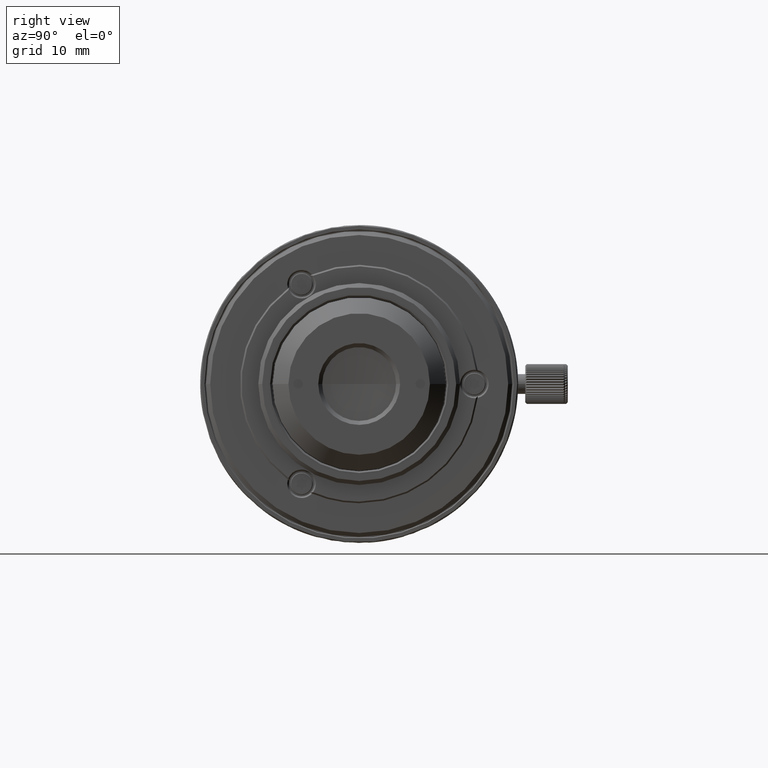
[diagram: clean part render]
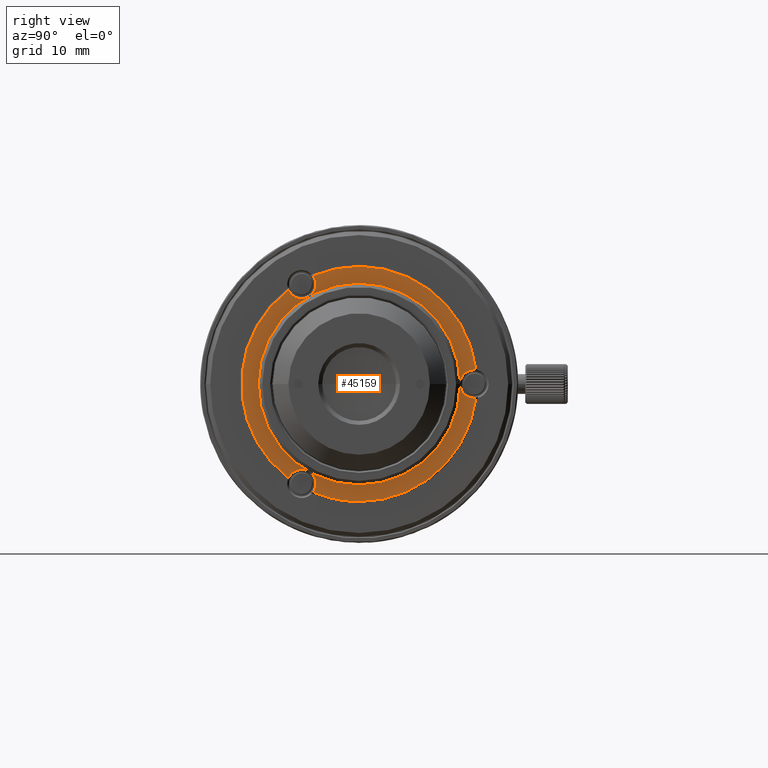
[diagram: same view with one face highlighted and labeled with its STEP entity id]
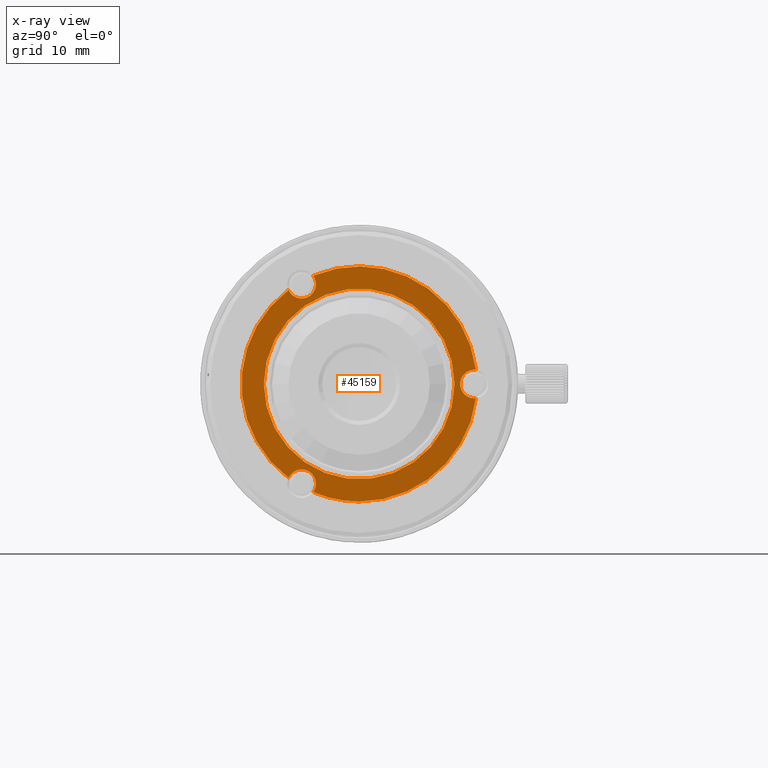
[diagram: x-ray of the same camera — body ghosted, the highlighted face saturated]
A machine part, right view. The second image highlights one B-rep face of the part: STEP entity #45159.
The next image is the same camera in x-ray: the body ghosted, the highlighted face saturated — about 0% of this face is hidden behind the body in this view.
In plain terms, the highlighted planar face has unit normal (-1, 0, 0).
Its self-contained STEP definition (entity closure, byte-faithful):
#296 = DIRECTION ( 'NONE',  ( 0.000000000000000000, -1.000000000000000000, 0.000000000000000000 ) ) ;
#346 = EDGE_CURVE ( 'NONE', #18546, #37930, #12892, .T. ) ;
#3335 = CIRCLE ( 'NONE', #28316, 14.80000062864999855 ) ;
#3362 = VERTEX_POINT ( 'NONE', #9645 ) ;
#4118 = AXIS2_PLACEMENT_3D ( 'NONE', #57099, #64925, #29232 ) ;
#6234 = AXIS2_PLACEMENT_3D ( 'NONE', #43205, #77249, #53200 ) ;
#6852 = ORIENTED_EDGE ( 'NONE', *, *, #75041, .F. ) ;
#7457 = VERTEX_POINT ( 'NONE', #52961 ) ;
#8005 = CIRCLE ( 'NONE', #6234, 1.800000000000000711 ) ;
#8061 = VERTEX_POINT ( 'NONE', #75900 ) ;
#8523 = CIRCLE ( 'NONE', #24576, 14.80022837059000018 ) ;
#9192 = DIRECTION ( 'NONE',  ( 0.000000000000000000, 0.000000000000000000, 1.000000000000000000 ) ) ;
#9409 = VERTEX_POINT ( 'NONE', #45067 ) ;
#9645 = CARTESIAN_POINT ( 'NONE',  ( -8.895699425235999769, -11.82820897464000076, 0.000000000000000000 ) ) ;
#10195 = EDGE_LOOP ( 'NONE', ( #54866, #108644, #49036, #38342, #85592, #50661, #56383, #26989, #23645, #6852 ) ) ;
#11852 = EDGE_CURVE ( 'NONE', #72165, #24278, #57294, .T. ) ;
#12892 = CIRCLE ( 'NONE', #55642, 1.800000000000000044 ) ;
#14168 = EDGE_CURVE ( 'NONE', #49492, #9409, #62873, .T. ) ;
#14210 = CARTESIAN_POINT ( 'NONE',  ( -12.00000000000000000, 0.000000000000000000, 0.000000000000000000 ) ) ;
#18492 = CARTESIAN_POINT ( 'NONE',  ( -0.0002794546518250000063, 0.0002815071706398999561, -3.103295398432000474E-12 ) ) ;
#18546 = VERTEX_POINT ( 'NONE', #81772 ) ;
#20461 = CIRCLE ( 'NONE', #82819, 1.800000000000000044 ) ;
#21104 = CIRCLE ( 'NONE', #83477, 12.00000000000000000 ) ;
#21597 = DIRECTION ( 'NONE',  ( 0.000000000000000000, 0.000000000000000000, -1.000000000000000000 ) ) ;
#22544 = EDGE_CURVE ( 'NONE', #3362, #8061, #3335, .T. ) ;
#22611 = AXIS2_PLACEMENT_3D ( 'NONE', #18492, #94912, #31482 ) ;
#23439 = DIRECTION ( 'NONE',  ( -0.8079354224512239613, 0.5892710353891170705, 0.000000000000000000 ) ) ;
#23645 = ORIENTED_EDGE ( 'NONE', *, *, #82122, .F. ) ;
#24278 = VERTEX_POINT ( 'NONE', #14210 ) ;
#24576 = AXIS2_PLACEMENT_3D ( 'NONE', #31619, #56180, #72908 ) ;
#24748 = PLANE ( 'NONE',  #50802 ) ;
#26989 = ORIENTED_EDGE ( 'NONE', *, *, #86418, .F. ) ;
#27758 = CIRCLE ( 'NONE', #42045, 1.800000000000000044 ) ;
#28316 = AXIS2_PLACEMENT_3D ( 'NONE', #108809, #56905, #30141 ) ;
#29232 = DIRECTION ( 'NONE',  ( 0.000000000000000000, -1.000000000000000000, 0.000000000000000000 ) ) ;
#30141 = DIRECTION ( 'NONE',  ( -0.6010607794692370831, -0.7992033154234491343, 0.000000000000000000 ) ) ;
#31482 = DIRECTION ( 'NONE',  ( 0.000000000000000000, 1.000000000000000000, 0.000000000000000000 ) ) ;
#31619 = CARTESIAN_POINT ( 'NONE',  ( -0.0001934229603178000043, 0.0001911736150891000087, -2.396305376351000077E-12 ) ) ;
#32130 = CARTESIAN_POINT ( 'NONE',  ( 0.000000000000000000, 0.000000000000000000, 0.000000000000000000 ) ) ;
#37930 = VERTEX_POINT ( 'NONE', #59201 ) ;
#38308 = CARTESIAN_POINT ( 'NONE',  ( 0.000000000000000000, 0.000000000000000000, 0.000000000000000000 ) ) ;
#38342 = ORIENTED_EDGE ( 'NONE', *, *, #14168, .F. ) ;
#39017 = DIRECTION ( 'NONE',  ( 0.000000000000000000, 0.000000000000000000, 1.000000000000000000 ) ) ;
#39156 = VERTEX_POINT ( 'NONE', #94777 ) ;
#39592 = DIRECTION ( 'NONE',  ( -1.000000000000000000, 0.000000000000000000, 0.000000000000000000 ) ) ;
#41512 = FACE_OUTER_BOUND ( 'NONE', #10195, .T. ) ;
#41772 = DIRECTION ( 'NONE',  ( 0.000000000000000000, 0.000000000000000000, 1.000000000000000000 ) ) ;
#41880 = CIRCLE ( 'NONE', #100645, 1.800000000000000711 ) ;
#42045 = AXIS2_PLACEMENT_3D ( 'NONE', #92550, #41772, #109858 ) ;
#43205 = CARTESIAN_POINT ( 'NONE',  ( -7.250000000000000000, 12.55736835487000036, 0.000000000000000000 ) ) ;
#43710 = CIRCLE ( 'NONE', #63276, 1.800000000000000266 ) ;
#44482 = VERTEX_POINT ( 'NONE', #61524 ) ;
#44799 = EDGE_CURVE ( 'NONE', #37930, #39156, #20461, .T. ) ;
#45067 = CARTESIAN_POINT ( 'NONE',  ( -0.0001934229603178000043, -14.80003719697296916, -2.396305376351000077E-12 ) ) ;
#45159 = ADVANCED_FACE ( 'NONE', ( #41512, #55622 ), #24748, .F. ) ;
#49036 = ORIENTED_EDGE ( 'NONE', *, *, #55184, .F. ) ;
#49492 = VERTEX_POINT ( 'NONE', #57515 ) ;
#50212 = CARTESIAN_POINT ( 'NONE',  ( -7.250000000000000000, -12.55736835487000036, 0.000000000000000000 ) ) ;
#50658 = EDGE_CURVE ( 'NONE', #39156, #49492, #27758, .T. ) ;
#50661 = ORIENTED_EDGE ( 'NONE', *, *, #44799, .F. ) ;
#50802 = AXIS2_PLACEMENT_3D ( 'NONE', #38308, #21597, #109031 ) ;
#52961 = CARTESIAN_POINT ( 'NONE',  ( -5.795757324452999626, -13.61811264460000004, -2.396305376351000077E-12 ) ) ;
#53200 = DIRECTION ( 'NONE',  ( 0.9142775077956818430, 0.4050884332326918358, 0.000000000000000000 ) ) ;
#54866 = ORIENTED_EDGE ( 'NONE', *, *, #22544, .F. ) ;
#55184 = EDGE_CURVE ( 'NONE', #9409, #7457, #8523, .T. ) ;
#55622 = FACE_BOUND ( 'NONE', #97752, .T. ) ;
#55642 = AXIS2_PLACEMENT_3D ( 'NONE', #61053, #9192, #296 ) ;
#56180 = DIRECTION ( 'NONE',  ( 0.000000000000000000, 0.000000000000000000, -1.000000000000000000 ) ) ;
#56383 = ORIENTED_EDGE ( 'NONE', *, *, #346, .F. ) ;
#56905 = DIRECTION ( 'NONE',  ( 0.000000000000000000, 0.000000000000000000, -1.000000000000000000 ) ) ;
#57099 = CARTESIAN_POINT ( 'NONE',  ( -0.0001934229603178000043, 0.0001911736150891000087, -2.396305376351000077E-12 ) ) ;
#57294 = CIRCLE ( 'NONE', #71541, 12.00000000000000000 ) ;
#57515 = CARTESIAN_POINT ( 'NONE',  ( 14.69139283926999973, -1.789795737248999874, 0.000000000000000000 ) ) ;
#59201 = CARTESIAN_POINT ( 'NONE',  ( 14.50000000000000000, 1.799999999999970290, 1.355252715606880543E-17 ) ) ;
#61053 = CARTESIAN_POINT ( 'NONE',  ( 14.50000000000000000, 0.000000000000000000, 0.000000000000000000 ) ) ;
#61524 = CARTESIAN_POINT ( 'NONE',  ( -7.250000000000000000, 10.75736835487002985, 1.355252715606880543E-17 ) ) ;
#62474 = CARTESIAN_POINT ( 'NONE',  ( 14.50000000000000000, 0.000000000000000000, 0.000000000000000000 ) ) ;
#62873 = CIRCLE ( 'NONE', #4118, 14.80022837059000018 ) ;
#63276 = AXIS2_PLACEMENT_3D ( 'NONE', #50212, #84272, #23439 ) ;
#63592 = CARTESIAN_POINT ( 'NONE',  ( 0.000000000000000000, 0.000000000000000000, 0.000000000000000000 ) ) ;
#64925 = DIRECTION ( 'NONE',  ( 0.000000000000000000, 0.000000000000000000, -1.000000000000000000 ) ) ;
#69139 = ORIENTED_EDGE ( 'NONE', *, *, #78901, .F. ) ;
#69379 = ORIENTED_EDGE ( 'NONE', *, *, #11852, .F. ) ;
#71541 = AXIS2_PLACEMENT_3D ( 'NONE', #32130, #75085, #99661 ) ;
#71925 = DIRECTION ( 'NONE',  ( 0.000000000000000000, 0.000000000000000000, 1.000000000000000000 ) ) ;
#72165 = VERTEX_POINT ( 'NONE', #78245 ) ;
#72348 = VERTEX_POINT ( 'NONE', #95321 ) ;
#72908 = DIRECTION ( 'NONE',  ( 0.000000000000000000, -1.000000000000000000, 0.000000000000000000 ) ) ;
#75041 = EDGE_CURVE ( 'NONE', #8061, #44482, #41880, .T. ) ;
#75085 = DIRECTION ( 'NONE',  ( 0.000000000000000000, 0.000000000000000000, 1.000000000000000000 ) ) ;
#75503 = EDGE_CURVE ( 'NONE', #7457, #3362, #43710, .T. ) ;
#75900 = CARTESIAN_POINT ( 'NONE',  ( -8.895699821292000209, 11.82820986852999923, 0.000000000000000000 ) ) ;
#77249 = DIRECTION ( 'NONE',  ( 0.000000000000000000, 0.000000000000000000, 1.000000000000000000 ) ) ;
#78245 = CARTESIAN_POINT ( 'NONE',  ( 12.00000000000000000, 0.000000000000000000, 0.000000000000000000 ) ) ;
#78901 = EDGE_CURVE ( 'NONE', #24278, #72165, #21104, .T. ) ;
#79409 = CIRCLE ( 'NONE', #22611, 14.79975409366000072 ) ;
#81772 = CARTESIAN_POINT ( 'NONE',  ( 14.69087990086999973, 1.789850735609999965, -3.103295398432000474E-12 ) ) ;
#82122 = EDGE_CURVE ( 'NONE', #44482, #72348, #8005, .T. ) ;
#82819 = AXIS2_PLACEMENT_3D ( 'NONE', #62474, #71925, #87620 ) ;
#83477 = AXIS2_PLACEMENT_3D ( 'NONE', #63592, #39017, #39592 ) ;
#84272 = DIRECTION ( 'NONE',  ( 0.000000000000000000, 0.000000000000000000, 1.000000000000000000 ) ) ;
#85592 = ORIENTED_EDGE ( 'NONE', *, *, #50658, .F. ) ;
#86418 = EDGE_CURVE ( 'NONE', #72348, #18546, #79409, .T. ) ;
#87620 = DIRECTION ( 'NONE',  ( 0.000000000000000000, -1.000000000000000000, 0.000000000000000000 ) ) ;
#88385 = DIRECTION ( 'NONE',  ( 0.000000000000000000, 0.000000000000000000, 1.000000000000000000 ) ) ;
#90580 = DIRECTION ( 'NONE',  ( 0.9142775077956818430, 0.4050884332326918358, 0.000000000000000000 ) ) ;
#92550 = CARTESIAN_POINT ( 'NONE',  ( 14.50000000000000000, 0.000000000000000000, 0.000000000000000000 ) ) ;
#94777 = CARTESIAN_POINT ( 'NONE',  ( 14.50000000000000000, -1.799999999999970290, 1.355252715606880543E-17 ) ) ;
#94912 = DIRECTION ( 'NONE',  ( 0.000000000000000000, 0.000000000000000000, -1.000000000000000000 ) ) ;
#95321 = CARTESIAN_POINT ( 'NONE',  ( -5.795754047272000165, 13.61810805383999856, 0.000000000000000000 ) ) ;
#97752 = EDGE_LOOP ( 'NONE', ( #69379, #69139 ) ) ;
#99661 = DIRECTION ( 'NONE',  ( 1.000000000000000000, 0.000000000000000000, 0.000000000000000000 ) ) ;
#100645 = AXIS2_PLACEMENT_3D ( 'NONE', #106751, #88385, #90580 ) ;
#106751 = CARTESIAN_POINT ( 'NONE',  ( -7.250000000000000000, 12.55736835487000036, 0.000000000000000000 ) ) ;
#108644 = ORIENTED_EDGE ( 'NONE', *, *, #75503, .F. ) ;
#108809 = CARTESIAN_POINT ( 'NONE',  ( 4.886334448173000275E-07, 5.959207678923000107E-07, 3.216982236154000610E-12 ) ) ;
#109031 = DIRECTION ( 'NONE',  ( 0.000000000000000000, -1.000000000000000000, 0.000000000000000000 ) ) ;
#109858 = DIRECTION ( 'NONE',  ( 0.000000000000000000, -1.000000000000000000, 0.000000000000000000 ) ) ;